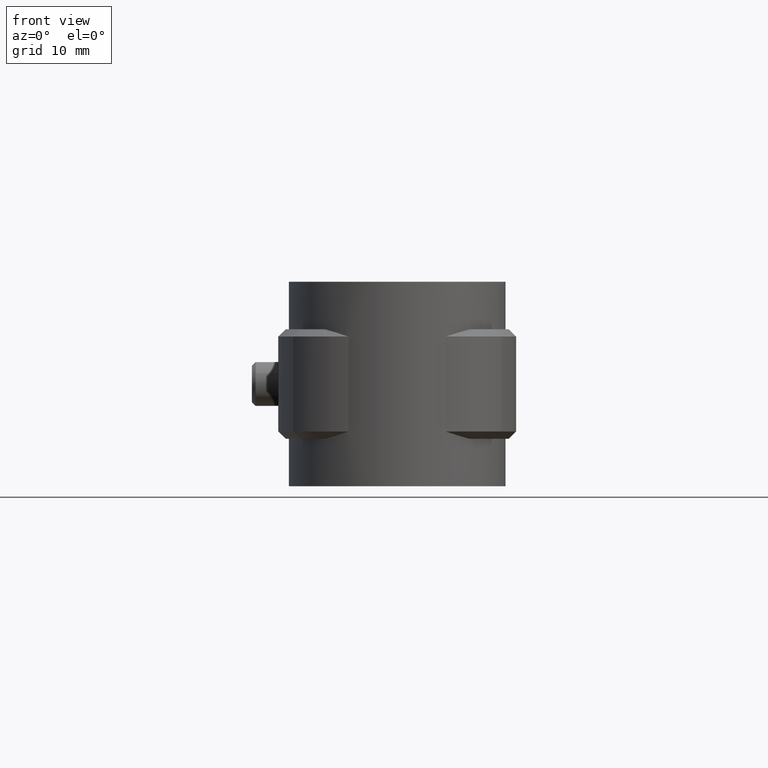
[diagram: clean part render]
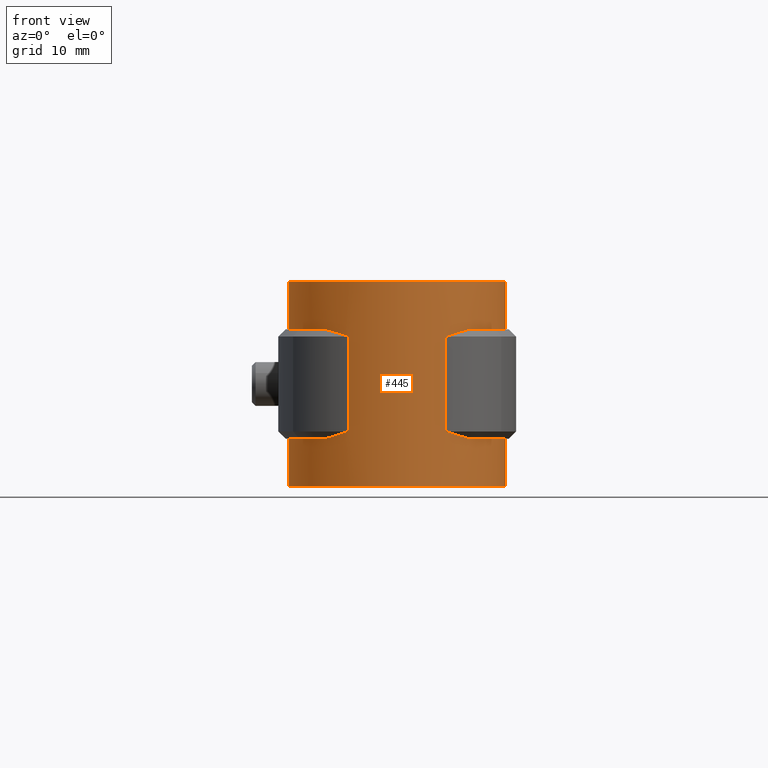
[diagram: same view with one face highlighted and labeled with its STEP entity id]
A machine part, front view. The second image highlights one B-rep face of the part: STEP entity #445.
In plain terms, the highlighted cylindrical surface (partial cylindrical patch) has radius 14.845 mm, axis along (0, 0, -1).
Its self-contained STEP definition (entity closure, byte-faithful):
#445 = ADVANCED_FACE( '', ( #860 ), #861, .T. );
#860 = FACE_OUTER_BOUND( '', #1941, .T. );
#861 = CYLINDRICAL_SURFACE( '', #1942, 14.8450000000000 );
#1941 = EDGE_LOOP( '', ( #4273, #4274, #4275, #4276, #4277, #4278, #4279, #4280, #4281, #4282, #4283, #4284, #4285, #4286, #4287, #4288 ) );
#1942 = AXIS2_PLACEMENT_3D( '', #4289, #4290, #4291 );
#4273 = ORIENTED_EDGE( '', *, *, #6567, .F. );
#4274 = ORIENTED_EDGE( '', *, *, #6568, .T. );
#4275 = ORIENTED_EDGE( '', *, *, #6569, .T. );
#4276 = ORIENTED_EDGE( '', *, *, #6570, .T. );
#4277 = ORIENTED_EDGE( '', *, *, #6571, .T. );
#4278 = ORIENTED_EDGE( '', *, *, #6572, .T. );
#4279 = ORIENTED_EDGE( '', *, *, #6573, .T. );
#4280 = ORIENTED_EDGE( '', *, *, #6435, .F. );
#4281 = ORIENTED_EDGE( '', *, *, #6574, .T. );
#4282 = ORIENTED_EDGE( '', *, *, #6575, .T. );
#4283 = ORIENTED_EDGE( '', *, *, #6576, .T. );
#4284 = ORIENTED_EDGE( '', *, *, #6577, .T. );
#4285 = ORIENTED_EDGE( '', *, *, #6578, .F. );
#4286 = ORIENTED_EDGE( '', *, *, #6429, .F. );
#4287 = ORIENTED_EDGE( '', *, *, #6427, .F. );
#4288 = ORIENTED_EDGE( '', *, *, #6579, .T. );
#4289 = CARTESIAN_POINT( '', ( 0.000000000000000, 0.000000000000000, -26.5000000000000 ) );
#4290 = DIRECTION( '', ( 0.000000000000000, 0.000000000000000, -1.00000000000000 ) );
#4291 = DIRECTION( '', ( 0.000000000000000, -1.00000000000000, 0.000000000000000 ) );
#6427 = EDGE_CURVE( '', #7436, #7419, #7438, .T. );
#6429 = EDGE_CURVE( '', #7419, #7441, #7442, .T. );
#6435 = EDGE_CURVE( '', #7451, #7453, #7454, .T. );
#6567 = EDGE_CURVE( '', #7675, #7676, #7677, .T. );
#6568 = EDGE_CURVE( '', #7675, #7678, #7679, .T. );
#6569 = EDGE_CURVE( '', #7678, #7680, #7681, .T. );
#6570 = EDGE_CURVE( '', #7680, #7682, #7683, .T. );
#6571 = EDGE_CURVE( '', #7682, #7684, #7685, .T. );
#6572 = EDGE_CURVE( '', #7684, #7686, #7687, .T. );
#6573 = EDGE_CURVE( '', #7686, #7453, #7688, .T. );
#6574 = EDGE_CURVE( '', #7451, #7689, #7690, .T. );
#6575 = EDGE_CURVE( '', #7689, #7691, #7692, .T. );
#6576 = EDGE_CURVE( '', #7691, #7693, #7694, .F. );
#6577 = EDGE_CURVE( '', #7693, #7695, #7696, .T. );
#6578 = EDGE_CURVE( '', #7441, #7695, #7697, .T. );
#6579 = EDGE_CURVE( '', #7436, #7676, #7698, .T. );
#7419 = VERTEX_POINT( '', #9653 );
#7436 = VERTEX_POINT( '', #9675 );
#7438 = CIRCLE( '', #9678, 14.8450000000000 );
#7441 = VERTEX_POINT( '', #9682 );
#7442 = LINE( '', #9683, #9684 );
#7451 = VERTEX_POINT( '', #9701 );
#7453 = VERTEX_POINT( '', #9704 );
#7454 = LINE( '', #9705, #9706 );
#7675 = VERTEX_POINT( '', #10650 );
#7676 = VERTEX_POINT( '', #10651 );
#7677 = CIRCLE( '', #10652, 14.8450000000000 );
#7678 = VERTEX_POINT( '', #10653 );
#7679 = B_SPLINE_CURVE_WITH_KNOTS( '', 3, ( #10654, #10655, #10656, #10657 ), .UNSPECIFIED., .F., .F., ( 4, 4 ), ( 3.87895961444886E-018, 0.00404559247340586 ), .UNSPECIFIED. );
#7680 = VERTEX_POINT( '', #10658 );
#7681 = LINE( '', #10659, #10660 );
#7682 = VERTEX_POINT( '', #10661 );
#7683 = B_SPLINE_CURVE_WITH_KNOTS( '', 3, ( #10662, #10663, #10664, #10665 ), .UNSPECIFIED., .F., .F., ( 4, 4 ), ( 8.67361737988404E-019, 0.00404559247340586 ), .UNSPECIFIED. );
#7684 = VERTEX_POINT( '', #10666 );
#7685 = CIRCLE( '', #10667, 14.8450000000000 );
#7686 = VERTEX_POINT( '', #10668 );
#7687 = LINE( '', #10669, #10670 );
#7688 = CIRCLE( '', #10671, 14.8450000000000 );
#7689 = VERTEX_POINT( '', #10672 );
#7690 = CIRCLE( '', #10673, 14.8450000000000 );
#7691 = VERTEX_POINT( '', #10674 );
#7692 = B_SPLINE_CURVE_WITH_KNOTS( '', 3, ( #10675, #10676, #10677, #10678 ), .UNSPECIFIED., .F., .F., ( 4, 4 ), ( 6.49074090789879E-018, 0.00404559247340588 ), .UNSPECIFIED. );
#7693 = VERTEX_POINT( '', #10679 );
#7694 = LINE( '', #10680, #10681 );
#7695 = VERTEX_POINT( '', #10682 );
#7696 = B_SPLINE_CURVE_WITH_KNOTS( '', 3, ( #10683, #10684, #10685, #10686 ), .UNSPECIFIED., .F., .F., ( 4, 4 ), ( 8.67361737988404E-019, 0.00404559247340586 ), .UNSPECIFIED. );
#7697 = CIRCLE( '', #10687, 14.8450000000000 );
#7698 = LINE( '', #10688, #10689 );
#9653 = CARTESIAN_POINT( '', ( -6.09999999999997, 13.5338104390449, -26.5000000000000 ) );
#9675 = CARTESIAN_POINT( '', ( 6.10000000000000, 13.5338104390449, -26.5000000000000 ) );
#9678 = AXIS2_PLACEMENT_3D( '', #12422, #12423, #12424 );
#9682 = CARTESIAN_POINT( '', ( -6.09999999999998, 13.5338104390449, -20.0000000000000 ) );
#9683 = CARTESIAN_POINT( '', ( -6.09999999999997, 13.5338104390449, -26.5000000000000 ) );
#9684 = VECTOR( '', #12426, 1000.00000000000 );
#9701 = CARTESIAN_POINT( '', ( -6.09999999999998, 13.5338104390449, -5.00000000000000 ) );
#9704 = CARTESIAN_POINT( '', ( -6.09999999999997, 13.5338104390449, 1.50000000000000 ) );
#9705 = CARTESIAN_POINT( '', ( -6.09999999999997, 13.5338104390449, -26.5000000000000 ) );
#9706 = VECTOR( '', #12430, 1000.00000000000 );
#10650 = CARTESIAN_POINT( '', ( 9.88937608114338, -11.0713262857577, -20.0000000000000 ) );
#10651 = CARTESIAN_POINT( '', ( 6.10000000000000, 13.5338104390449, -20.0000000000000 ) );
#10652 = AXIS2_PLACEMENT_3D( '', #12562, #12563, #12564 );
#10653 = CARTESIAN_POINT( '', ( 6.64661852739555, -13.2739024838697, -19.0000000000000 ) );
#10654 = CARTESIAN_POINT( '', ( 9.88937608114338, -11.0713262857577, -20.0000000000000 ) );
#10655 = CARTESIAN_POINT( '', ( 8.89241068396969, -11.9618578714107, -19.7387745931103 ) );
#10656 = CARTESIAN_POINT( '', ( 7.81069615497403, -12.6910158809139, -19.3969324757782 ) );
#10657 = CARTESIAN_POINT( '', ( 6.64661852739555, -13.2739024838697, -19.0000000000000 ) );
#10658 = CARTESIAN_POINT( '', ( 6.64661852739555, -13.2739024838697, -6.00000000000000 ) );
#10659 = CARTESIAN_POINT( '', ( 6.64661852739555, -13.2739024838697, -12.5000000000000 ) );
#10660 = VECTOR( '', #12565, 1000.00000000000 );
#10661 = CARTESIAN_POINT( '', ( 9.88937608114338, -11.0713262857577, -5.00000000000000 ) );
#10662 = CARTESIAN_POINT( '', ( 6.64661852739555, -13.2739024838697, -6.00000000000000 ) );
#10663 = CARTESIAN_POINT( '', ( 7.81069615497403, -12.6910158809139, -5.60306752422180 ) );
#10664 = CARTESIAN_POINT( '', ( 8.89241068396968, -11.9618578714107, -5.26122540688970 ) );
#10665 = CARTESIAN_POINT( '', ( 9.88937608114338, -11.0713262857577, -5.00000000000000 ) );
#10666 = CARTESIAN_POINT( '', ( 6.10000000000000, 13.5338104390449, -5.00000000000000 ) );
#10667 = AXIS2_PLACEMENT_3D( '', #12566, #12567, #12568 );
#10668 = CARTESIAN_POINT( '', ( 6.10000000000000, 13.5338104390449, 1.50000000000000 ) );
#10669 = CARTESIAN_POINT( '', ( 6.10000000000000, 13.5338104390449, -26.5000000000000 ) );
#10670 = VECTOR( '', #12569, 1000.00000000000 );
#10671 = AXIS2_PLACEMENT_3D( '', #12570, #12571, #12572 );
#10672 = CARTESIAN_POINT( '', ( -9.88937608114338, -11.0713262857577, -5.00000000000000 ) );
#10673 = AXIS2_PLACEMENT_3D( '', #12573, #12574, #12575 );
#10674 = CARTESIAN_POINT( '', ( -6.64661852739555, -13.2739024838697, -6.00000000000000 ) );
#10675 = CARTESIAN_POINT( '', ( -9.88937608114339, -11.0713262857577, -5.00000000000000 ) );
#10676 = CARTESIAN_POINT( '', ( -8.89241068396970, -11.9618578714107, -5.26122540688970 ) );
#10677 = CARTESIAN_POINT( '', ( -7.81069615497403, -12.6910158809139, -5.60306752422180 ) );
#10678 = CARTESIAN_POINT( '', ( -6.64661852739555, -13.2739024838697, -6.00000000000000 ) );
#10679 = CARTESIAN_POINT( '', ( -6.64661852739555, -13.2739024838697, -19.0000000000000 ) );
#10680 = CARTESIAN_POINT( '', ( -6.64661852739555, -13.2739024838697, -12.5000000000000 ) );
#10681 = VECTOR( '', #12576, 1000.00000000000 );
#10682 = CARTESIAN_POINT( '', ( -9.88937608114338, -11.0713262857577, -20.0000000000000 ) );
#10683 = CARTESIAN_POINT( '', ( -6.64661852739555, -13.2739024838697, -19.0000000000000 ) );
#10684 = CARTESIAN_POINT( '', ( -7.81069615497403, -12.6910158809139, -19.3969324757782 ) );
#10685 = CARTESIAN_POINT( '', ( -8.89241068396969, -11.9618578714107, -19.7387745931103 ) );
#10686 = CARTESIAN_POINT( '', ( -9.88937608114338, -11.0713262857577, -20.0000000000000 ) );
#10687 = AXIS2_PLACEMENT_3D( '', #12577, #12578, #12579 );
#10688 = CARTESIAN_POINT( '', ( 6.10000000000000, 13.5338104390449, -26.5000000000000 ) );
#10689 = VECTOR( '', #12580, 1000.00000000000 );
#12422 = CARTESIAN_POINT( '', ( 0.000000000000000, 0.000000000000000, -26.5000000000000 ) );
#12423 = DIRECTION( '', ( 0.000000000000000, 0.000000000000000, -1.00000000000000 ) );
#12424 = DIRECTION( '', ( 1.00000000000000, 0.000000000000000, 0.000000000000000 ) );
#12426 = DIRECTION( '', ( 0.000000000000000, 0.000000000000000, 1.00000000000000 ) );
#12430 = DIRECTION( '', ( 0.000000000000000, 0.000000000000000, 1.00000000000000 ) );
#12562 = CARTESIAN_POINT( '', ( 0.000000000000000, 0.000000000000000, -20.0000000000000 ) );
#12563 = DIRECTION( '', ( 0.000000000000000, 0.000000000000000, 1.00000000000000 ) );
#12564 = DIRECTION( '', ( 1.00000000000000, 0.000000000000000, 0.000000000000000 ) );
#12565 = DIRECTION( '', ( 0.000000000000000, 0.000000000000000, 1.00000000000000 ) );
#12566 = CARTESIAN_POINT( '', ( 0.000000000000000, 0.000000000000000, -5.00000000000000 ) );
#12567 = DIRECTION( '', ( 0.000000000000000, 0.000000000000000, 1.00000000000000 ) );
#12568 = DIRECTION( '', ( 1.00000000000000, 0.000000000000000, 0.000000000000000 ) );
#12569 = DIRECTION( '', ( 0.000000000000000, 0.000000000000000, 1.00000000000000 ) );
#12570 = CARTESIAN_POINT( '', ( 0.000000000000000, 0.000000000000000, 1.50000000000000 ) );
#12571 = DIRECTION( '', ( 0.000000000000000, 0.000000000000000, -1.00000000000000 ) );
#12572 = DIRECTION( '', ( 1.00000000000000, 0.000000000000000, 0.000000000000000 ) );
#12573 = CARTESIAN_POINT( '', ( 0.000000000000000, 0.000000000000000, -5.00000000000000 ) );
#12574 = DIRECTION( '', ( 0.000000000000000, 0.000000000000000, 1.00000000000000 ) );
#12575 = DIRECTION( '', ( 1.00000000000000, 0.000000000000000, 0.000000000000000 ) );
#12576 = DIRECTION( '', ( 0.000000000000000, 0.000000000000000, 1.00000000000000 ) );
#12577 = CARTESIAN_POINT( '', ( 0.000000000000000, 0.000000000000000, -20.0000000000000 ) );
#12578 = DIRECTION( '', ( 0.000000000000000, 0.000000000000000, 1.00000000000000 ) );
#12579 = DIRECTION( '', ( 1.00000000000000, 0.000000000000000, 0.000000000000000 ) );
#12580 = DIRECTION( '', ( 0.000000000000000, 0.000000000000000, 1.00000000000000 ) );